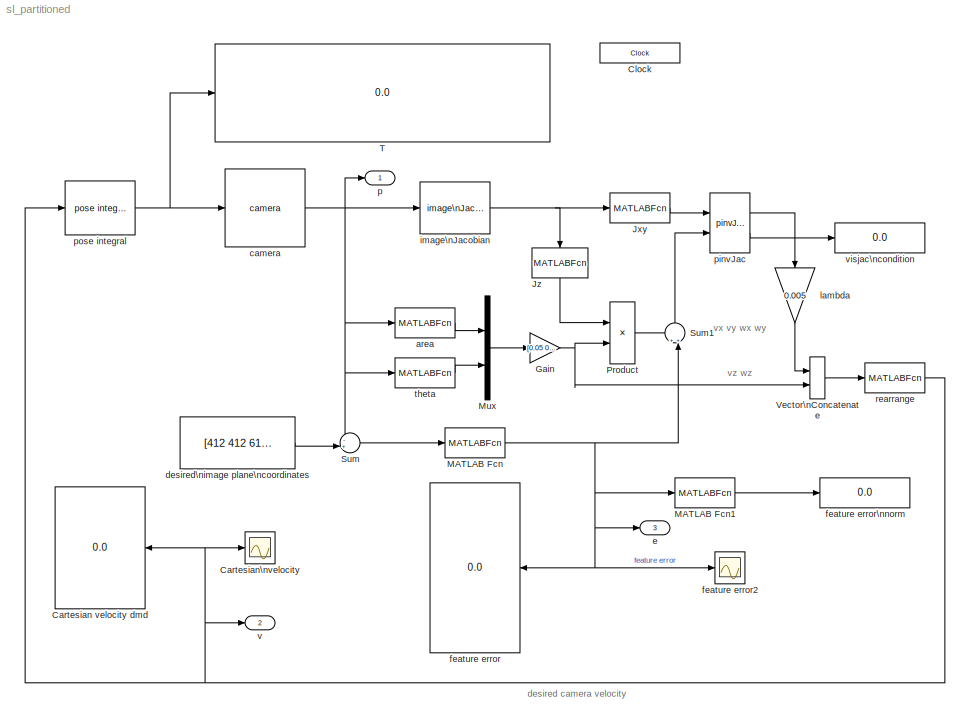
MODEL sl_partitioned
KIND model
CONFIG InitFcn = cam = CentralCamera('default')
BLOCK [Display] Cartesian velocity dmd
  Decimation = 1
  Format = bank
  Ports = [1]
  SID = 1
BLOCK [Scope] Cartesian\nvelocity
  DataFormat = StructureWithTime
  Floating = off
  NumInputPorts = 1
  Ports = [1]
  SID = 50
  SampleTime = 0
  ShowLegends = off
  TimeRange = 20
  YMax = 350
  YMin = 0
  ZoomMode = yonly
BLOCK [Clock] Clock
  DisplayTime = on
  SID = 39
BLOCK [Gain] Gain
  Gain = [0.05 0.05]
  OutDataTypeStr = Inherit: Inherit via internal rule
  ParamDataTypeStr = Inherit: Inherit via internal rule
  SID = 64
  SaturateOnIntegerOverflow = off
BLOCK [MATLABFcn] Jxy
  MATLABFcn = u(:,[1 2 4 5])
  Output1D = off
  Ports = [1, 1]
  SID = 58
BLOCK [MATLABFcn] Jz
  MATLABFcn = u(:,[3 6])
  Output1D = off
  Ports = [1, 1]
  SID = 60
BLOCK [MATLABFcn] MATLAB Fcn
  MATLABFcn = u(:)
  Output1D = off
  Ports = [1, 1]
  SID = 3
BLOCK [MATLABFcn] MATLAB Fcn1
  MATLABFcn = norm(u)
  Ports = [1, 1]
  SID = 4
BLOCK [Mux] Mux
  DisplayOption = bar
  Inputs = 2
  Ports = [2, 1]
  SID = 54
BLOCK [Product] Product
  InputSameDT = off
  Multiplication = Matrix(*)
  OutDataTypeStr = Inherit: Inherit via internal rule
  Ports = [2, 1]
  SID = 57
  SaturateOnIntegerOverflow = off
BLOCK [Sum] Sum
  IconShape = round
  Inputs = -+|
  Ports = [2, 1]
  SID = 10
BLOCK [Sum] Sum1
  IconShape = round
  InputSameDT = off
  Inputs = ++|
  OutDataTypeStr = Inherit: Inherit via internal rule
  Ports = [2, 1]
  SID = 51
  SaturateOnIntegerOverflow = off
BLOCK [Display] T
  Decimation = 1
  Ports = [1]
  SID = 40
BLOCK [Concatenate] Vector\nConcatenate
  ConcatenateDimension = 2
  Ports = [2, 1]
  SID = 61
BLOCK [MATLABFcn] area
  MATLABFcn = 1-sqrt( abs(mpq_poly(u, 0,0)) )/200
  Ports = [1, 1]
  SID = 55
BLOCK [Reference] camera  REF=roblocks/Vision/camera  (lib defined in mdl_2a292b13c81b, mdl_69400f8cfe22, +12 more)
  Ports = [1, 1]
  SID = 47
  SourceBlock = roblocks/Vision/camera
  cam = cam
  points = mkgrid(2, 0.5, 'T', transl(0,0,3))
BLOCK [Constant] desired\nimage plane\ncoordinates
  SID = 16
  Value = [412 412 612 612; 412 612 612 412]
  VectorParams1D = off
BLOCK [Outport] e
  IconDisplay = Port number
  Port = 3
  SID = 71
BLOCK [Display] feature error
  Decimation = 1
  Format = bank
  Ports = [1]
  SID = 17
BLOCK [Scope] feature error2
  DataFormat = StructureWithTime
  Floating = off
  NumInputPorts = 1
  Ports = [1]
  SID = 19
  SampleTime = 0
  SaveName = ScopeData1
  ShowLegends = off
  TimeRange = 20
  YMax = 150
  YMin = -600
  ZoomMode = yonly
BLOCK [Display] feature error\nnorm
  Decimation = 1
  Ports = [1]
  SID = 18
BLOCK [Reference] image\nJacobian  REF=roblocks/Vision/image\nJacobian  (lib defined in mdl_2a292b13c81b, mdl_69400f8cfe22, +12 more)
  Ports = [1, 1]
  SID = 72
  SourceBlock = roblocks/Vision/image\nJacobian
  cam = cam
  z = 2
BLOCK [Gain] lambda
  Gain = 0.005
  SID = 63
BLOCK [Outport] p
  IconDisplay = Port number
  SID = 69
BLOCK [Reference] pinvJac  REF=roblocks/Vision/pinvJac  (lib defined in mdl_2a292b13c81b, mdl_69400f8cfe22, +12 more)
  Ports = [2, 2]
  SID = 73
  SourceBlock = roblocks/Vision/pinvJac
BLOCK [Reference] pose integral  REF=roblocks/Kinematics/pose integral  (lib defined in mdl_2a292b13c81b, mdl_69400f8cfe22, +12 more)
  Ports = [1, 1]
  SID = 75
  SourceBlock = roblocks/Kinematics/pose integral
  T0 = transl(-1,-1,0)*trotx(0.2)*trotz(0.3)
  dt = 0.02
BLOCK [MATLABFcn] rearrange
  MATLABFcn = u([1 2 5 3 4 6])
  Ports = [1, 1]
  SID = 62
BLOCK [MATLABFcn] theta
  MATLABFcn = angdiff( atan2(u(2,3)-u(2,2),u(1,3)-u(1,2)), 0 )
  Ports = [1, 1]
  SID = 56
BLOCK [Outport] v
  IconDisplay = Port number
  Port = 2
  SID = 70
BLOCK [Display] visjac\ncondition
  Decimation = 1
  Ports = [1]
  SID = 26
ANNOTATION (root): desired camera velocity
ANNOTATION (root): vx vy wx wy
ANNOTATION (root): vz wz
NET Gain:1 -> Product:2, Vector\nConcatenate:2
LINE Jxy:1 -> pinvJac:1
LINE Jz:1 -> Product:1
LINE MATLAB Fcn1:1 -> feature error\nnorm:1
NET MATLAB Fcn:1 -> MATLAB Fcn1:1, Sum1:2, e:1, feature error2:1, feature error:1
LINE Mux:1 -> Gain:1
LINE Product:1 -> Sum1:1
LINE Sum1:1 -> pinvJac:2
LINE Sum:1 -> MATLAB Fcn:1
LINE Vector\nConcatenate:1 -> rearrange:1
LINE area:1 -> Mux:1
NET camera:1 -> Sum:1, area:1, image\nJacobian:1, p:1, theta:1
LINE desired\nimage plane\ncoordinates:1 -> Sum:2
NET image\nJacobian:1 -> Jxy:1, Jz:1
LINE lambda:1 -> Vector\nConcatenate:1
LINE pinvJac:1 -> lambda:1
LINE pinvJac:2 -> visjac\ncondition:1
NET pose integral:1 -> T:1, camera:1
NET rearrange:1 -> Cartesian velocity dmd:1, Cartesian\nvelocity:1, pose integral:1, v:1
LINE theta:1 -> Mux:2
note: NET lines group one-source signal fan-out (src -> all destinations, sorted); 1:1 wires keep LINE
